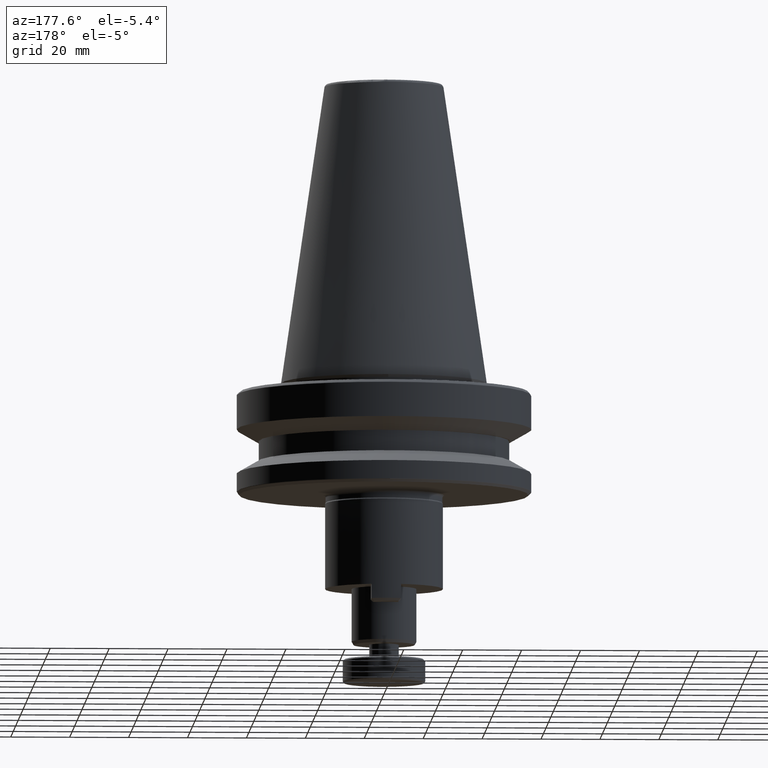
[diagram: clean part render]
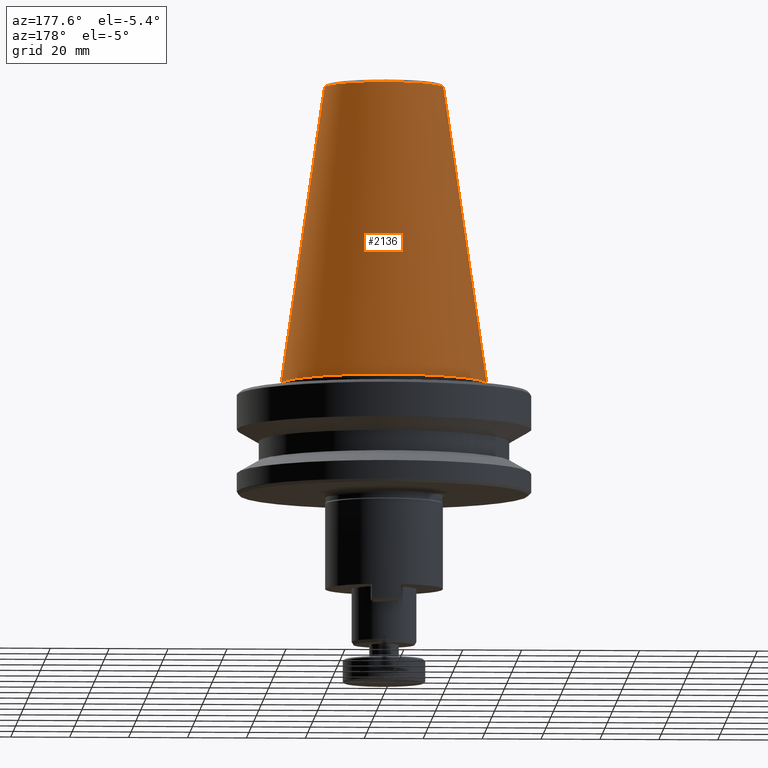
[diagram: same view with one face highlighted and labeled with its STEP entity id]
A machine part, auxiliary view. The second image highlights one B-rep face of the part: STEP entity #2136.
In plain terms, the highlighted conical surface has half-angle 8.297 deg.
Its self-contained STEP definition (entity closure, byte-faithful):
#39 = ORIENTED_EDGE ( 'NONE', *, *, #266, .T. ) ;
#52 = ORIENTED_EDGE ( 'NONE', *, *, #280, .T. ) ;
#173 = VERTEX_POINT ( 'NONE', #1122 ) ;
#223 = CARTESIAN_POINT ( 'NONE',  ( 0.0000000000000000000, 0.0000000000000000000, 0.0000000000000000000 ) ) ;
#230 = DIRECTION ( 'NONE',  ( -0.0000000000000000000, -0.0000000000000000000, 1.000000000000000000 ) ) ;
#231 = DIRECTION ( 'NONE',  ( -1.000000000000000000, 8.881784197001252300E-016, 6.427618013069544000E-018 ) ) ;
#266 = EDGE_CURVE ( 'NONE', #1584, #1124, #860, .T. ) ;
#280 = EDGE_CURVE ( 'NONE', #740, #1584, #1347, .T. ) ;
#323 = CARTESIAN_POINT ( 'NONE',  ( -20.20381605152172400, 0.0000000000000000000, 100.9443082272673600 ) ) ;
#494 = LINE ( 'NONE', #797, #2007 ) ;
#551 = AXIS2_PLACEMENT_3D ( 'NONE', #223, #230, #231 ) ;
#563 = CARTESIAN_POINT ( 'NONE',  ( 0.0000000000000000000, 0.0000000000000000000, 0.0000000000000000000 ) ) ;
#582 = VERTEX_POINT ( 'NONE', #1445 ) ;
#588 = DIRECTION ( 'NONE',  ( 0.0000000000000000000, 0.0000000000000000000, -1.000000000000000000 ) ) ;
#654 = ORIENTED_EDGE ( 'NONE', *, *, #1430, .T. ) ;
#661 = DIRECTION ( 'NONE',  ( -1.000000000000000000, 0.0000000000000000000, -6.868894357593007200E-016 ) ) ;
#669 = ORIENTED_EDGE ( 'NONE', *, *, #889, .T. ) ;
#687 = DIRECTION ( 'NONE',  ( -1.000000000000000000, 0.0000000000000000000, 6.427618013069544000E-018 ) ) ;
#740 = VERTEX_POINT ( 'NONE', #2550 ) ;
#777 = DIRECTION ( 'NONE',  ( -1.000000000000000000, 0.0000000000000000000, -6.868894357593007200E-016 ) ) ;
#792 = CIRCLE ( 'NONE', #1585, 34.92499999999999700 ) ;
#797 = CARTESIAN_POINT ( 'NONE',  ( -34.92499999999999700, 0.0000000000000000000, 1.313882548479626100E-015 ) ) ;
#798 = DIRECTION ( 'NONE',  ( -0.1443082272673069400, 0.0000000000000000000, -0.9895327864921743500 ) ) ;
#860 = LINE ( 'NONE', #1459, #1880 ) ;
#889 = EDGE_CURVE ( 'NONE', #582, #173, #1016, .T. ) ;
#953 = AXIS2_PLACEMENT_3D ( 'NONE', #2532, #1179, #661 ) ;
#1016 = CIRCLE ( 'NONE', #551, 34.92499999999999700 ) ;
#1031 = EDGE_LOOP ( 'NONE', ( #52, #39, #1768, #669, #1472, #654 ) ) ;
#1122 = CARTESIAN_POINT ( 'NONE',  ( -34.92499999999999700, 0.0000000000000000000, 0.0000000000000000000 ) ) ;
#1124 = VERTEX_POINT ( 'NONE', #2294 ) ;
#1166 = FACE_OUTER_BOUND ( 'NONE', #1031, .T. ) ;
#1179 = DIRECTION ( 'NONE',  ( 0.0000000000000000000, 0.0000000000000000000, -1.000000000000000000 ) ) ;
#1347 = CIRCLE ( 'NONE', #1536, 20.20381605152172000 ) ;
#1349 = CARTESIAN_POINT ( 'NONE',  ( 20.20381605152172400, 3.375666405913964900E-015, 100.9443082272673600 ) ) ;
#1357 = AXIS2_PLACEMENT_3D ( 'NONE', #1795, #1919, #1793 ) ;
#1430 = EDGE_CURVE ( 'NONE', #2307, #740, #1804, .T. ) ;
#1445 = CARTESIAN_POINT ( 'NONE',  ( 4.277078946022131700E-015, 34.92500000000000400, 3.851859888774471700E-031 ) ) ;
#1459 = CARTESIAN_POINT ( 'NONE',  ( 34.92499999999999700, 4.277078946022130900E-015, 1.313882548479626100E-015 ) ) ;
#1472 = ORIENTED_EDGE ( 'NONE', *, *, #2269, .F. ) ;
#1536 = AXIS2_PLACEMENT_3D ( 'NONE', #2102, #588, #777 ) ;
#1584 = VERTEX_POINT ( 'NONE', #1349 ) ;
#1585 = AXIS2_PLACEMENT_3D ( 'NONE', #563, #1951, #687 ) ;
#1661 = CONICAL_SURFACE ( 'NONE', #1357, 34.92499999999999700, 0.1448138465474189400 ) ;
#1768 = ORIENTED_EDGE ( 'NONE', *, *, #2438, .T. ) ;
#1793 = DIRECTION ( 'NONE',  ( -1.000000000000000000, 0.0000000000000000000, 0.0000000000000000000 ) ) ;
#1795 = CARTESIAN_POINT ( 'NONE',  ( 0.0000000000000000000, 0.0000000000000000000, 1.313882548479626100E-015 ) ) ;
#1804 = CIRCLE ( 'NONE', #953, 20.20381605152172000 ) ;
#1880 = VECTOR ( 'NONE', #2149, 1000.000000000000000 ) ;
#1919 = DIRECTION ( 'NONE',  ( 0.0000000000000000000, 0.0000000000000000000, -1.000000000000000000 ) ) ;
#1951 = DIRECTION ( 'NONE',  ( -0.0000000000000000000, -0.0000000000000000000, 1.000000000000000000 ) ) ;
#2007 = VECTOR ( 'NONE', #798, 1000.000000000000000 ) ;
#2102 = CARTESIAN_POINT ( 'NONE',  ( 0.0000000000000000000, 0.0000000000000000000, 100.9443082272673600 ) ) ;
#2136 = ADVANCED_FACE ( 'NONE', ( #1166 ), #1661, .T. ) ;
#2149 = DIRECTION ( 'NONE',  ( 0.1443082272673069400, 1.767266086135362400E-017, -0.9895327864921743500 ) ) ;
#2269 = EDGE_CURVE ( 'NONE', #2307, #173, #494, .T. ) ;
#2294 = CARTESIAN_POINT ( 'NONE',  ( 34.92499999999999700, 4.277078946022130900E-015, 0.0000000000000000000 ) ) ;
#2307 = VERTEX_POINT ( 'NONE', #323 ) ;
#2438 = EDGE_CURVE ( 'NONE', #1124, #582, #792, .T. ) ;
#2532 = CARTESIAN_POINT ( 'NONE',  ( 0.0000000000000000000, 0.0000000000000000000, 100.9443082272673600 ) ) ;
#2550 = CARTESIAN_POINT ( 'NONE',  ( 2.474253865805797800E-015, 20.20381605152170900, 100.9443082272673600 ) ) ;